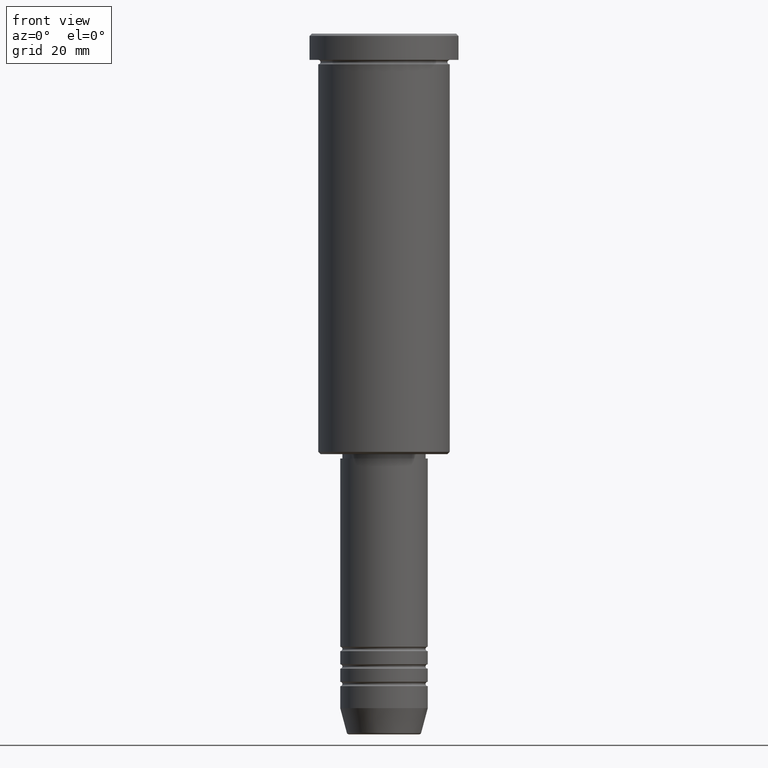
[diagram: clean part render]
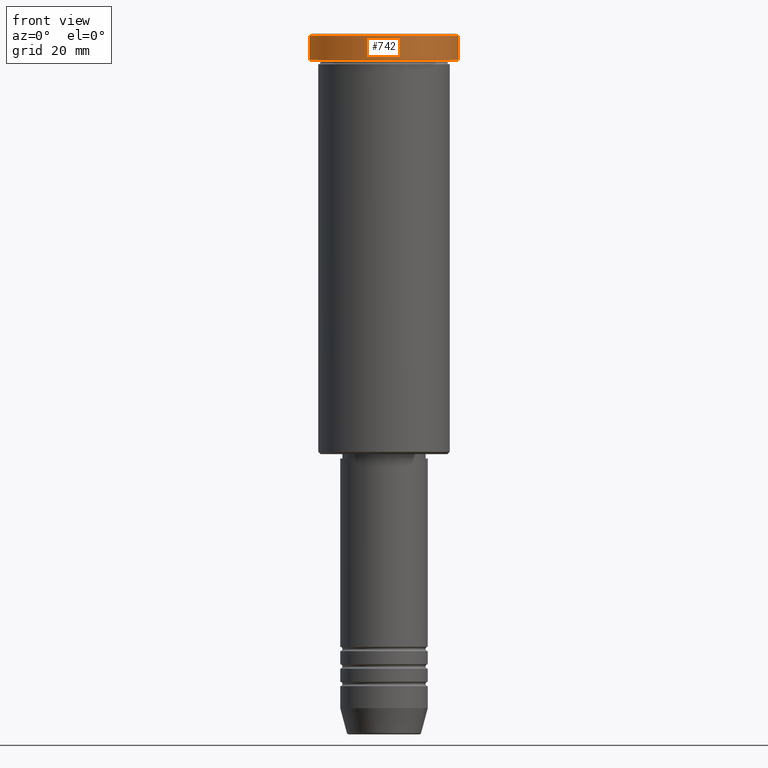
[diagram: same view with one face highlighted and labeled with its STEP entity id]
A machine part, front view. The second image highlights one B-rep face of the part: STEP entity #742.
In plain terms, the highlighted cylindrical surface (partial cylindrical patch) has radius 17 mm, axis along (-0, -0, 1).
Its self-contained STEP definition (entity closure, byte-faithful):
#7 = ORIENTED_EDGE ( 'NONE', *, *, #304, .T. ) ;
#29 = AXIS2_PLACEMENT_3D ( 'NONE', #241, #251, #326 ) ;
#33 = VERTEX_POINT ( 'NONE', #1107 ) ;
#72 = LINE ( 'NONE', #1171, #409 ) ;
#158 = VECTOR ( 'NONE', #1084, 1000.000000000000000 ) ;
#170 = FACE_OUTER_BOUND ( 'NONE', #977, .T. ) ;
#233 = EDGE_CURVE ( 'NONE', #33, #1067, #72, .T. ) ;
#241 = CARTESIAN_POINT ( 'NONE',  ( 0.000000000000000000, 0.000000000000000000, -0.5000000000000213163 ) ) ;
#251 = DIRECTION ( 'NONE',  ( 0.000000000000000000, 0.000000000000000000, -1.000000000000000000 ) ) ;
#258 = CARTESIAN_POINT ( 'NONE',  ( -17.00000000000000000, 2.081899558550500280E-15, -0.5000000000000213163 ) ) ;
#294 = AXIS2_PLACEMENT_3D ( 'NONE', #658, #383, #301 ) ;
#301 = DIRECTION ( 'NONE',  ( 1.000000000000000000, 0.000000000000000000, 0.000000000000000000 ) ) ;
#304 = EDGE_CURVE ( 'NONE', #33, #806, #564, .T. ) ;
#326 = DIRECTION ( 'NONE',  ( 1.000000000000000000, 0.000000000000000000, 0.000000000000000000 ) ) ;
#359 = CARTESIAN_POINT ( 'NONE',  ( 17.00000000000000000, 0.000000000000000000, 0.000000000000000000 ) ) ;
#376 = CARTESIAN_POINT ( 'NONE',  ( 0.000000000000000000, 0.000000000000000000, 0.000000000000000000 ) ) ;
#383 = DIRECTION ( 'NONE',  ( -0.000000000000000000, -0.000000000000000000, 1.000000000000000000 ) ) ;
#409 = VECTOR ( 'NONE', #726, 1000.000000000000000 ) ;
#426 = ORIENTED_EDGE ( 'NONE', *, *, #594, .T. ) ;
#546 = CYLINDRICAL_SURFACE ( 'NONE', #882, 17.00000000000000000 ) ;
#564 = CIRCLE ( 'NONE', #294, 17.00000000000000000 ) ;
#568 = CARTESIAN_POINT ( 'NONE',  ( 17.00000000000000000, 0.000000000000000000, -0.5000000000000213163 ) ) ;
#594 = EDGE_CURVE ( 'NONE', #806, #766, #1000, .T. ) ;
#658 = CARTESIAN_POINT ( 'NONE',  ( 0.000000000000000000, 0.000000000000000000, -5.999999999999994671 ) ) ;
#723 = ORIENTED_EDGE ( 'NONE', *, *, #1105, .T. ) ;
#726 = DIRECTION ( 'NONE',  ( -0.000000000000000000, -0.000000000000000000, 1.000000000000000000 ) ) ;
#742 = ADVANCED_FACE ( 'NONE', ( #170 ), #546, .T. ) ;
#766 = VERTEX_POINT ( 'NONE', #568 ) ;
#801 = CIRCLE ( 'NONE', #29, 17.00000000000000000 ) ;
#806 = VERTEX_POINT ( 'NONE', #938 ) ;
#870 = ORIENTED_EDGE ( 'NONE', *, *, #233, .F. ) ;
#882 = AXIS2_PLACEMENT_3D ( 'NONE', #376, #1183, #1179 ) ;
#938 = CARTESIAN_POINT ( 'NONE',  ( 17.00000000000000000, 0.000000000000000000, -5.999999999999994671 ) ) ;
#977 = EDGE_LOOP ( 'NONE', ( #870, #7, #426, #723 ) ) ;
#1000 = LINE ( 'NONE', #359, #158 ) ;
#1067 = VERTEX_POINT ( 'NONE', #258 ) ;
#1084 = DIRECTION ( 'NONE',  ( -0.000000000000000000, -0.000000000000000000, 1.000000000000000000 ) ) ;
#1105 = EDGE_CURVE ( 'NONE', #766, #1067, #801, .T. ) ;
#1107 = CARTESIAN_POINT ( 'NONE',  ( -17.00000000000000000, 2.081899558550500280E-15, -5.999999999999994671 ) ) ;
#1171 = CARTESIAN_POINT ( 'NONE',  ( -17.00000000000000000, 2.081899558550500280E-15, 0.000000000000000000 ) ) ;
#1179 = DIRECTION ( 'NONE',  ( 1.000000000000000000, 0.000000000000000000, 0.000000000000000000 ) ) ;
#1183 = DIRECTION ( 'NONE',  ( -0.000000000000000000, -0.000000000000000000, 1.000000000000000000 ) ) ;